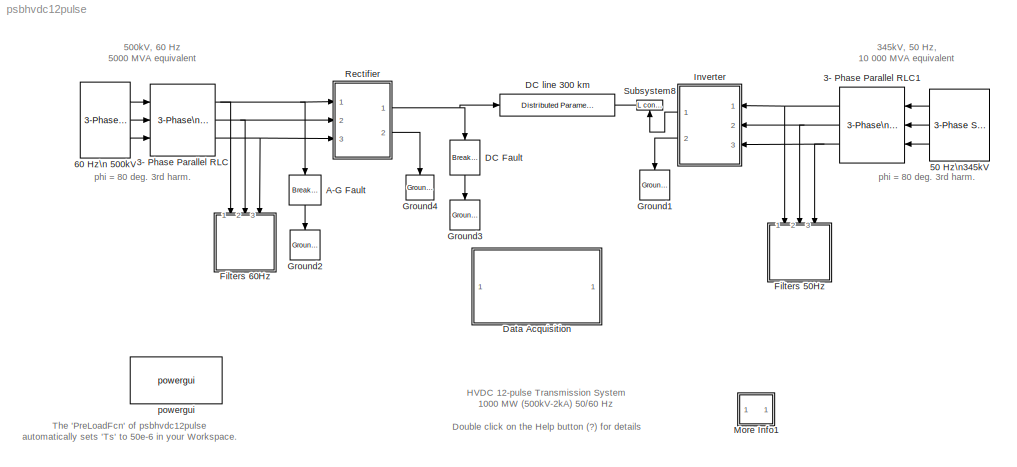
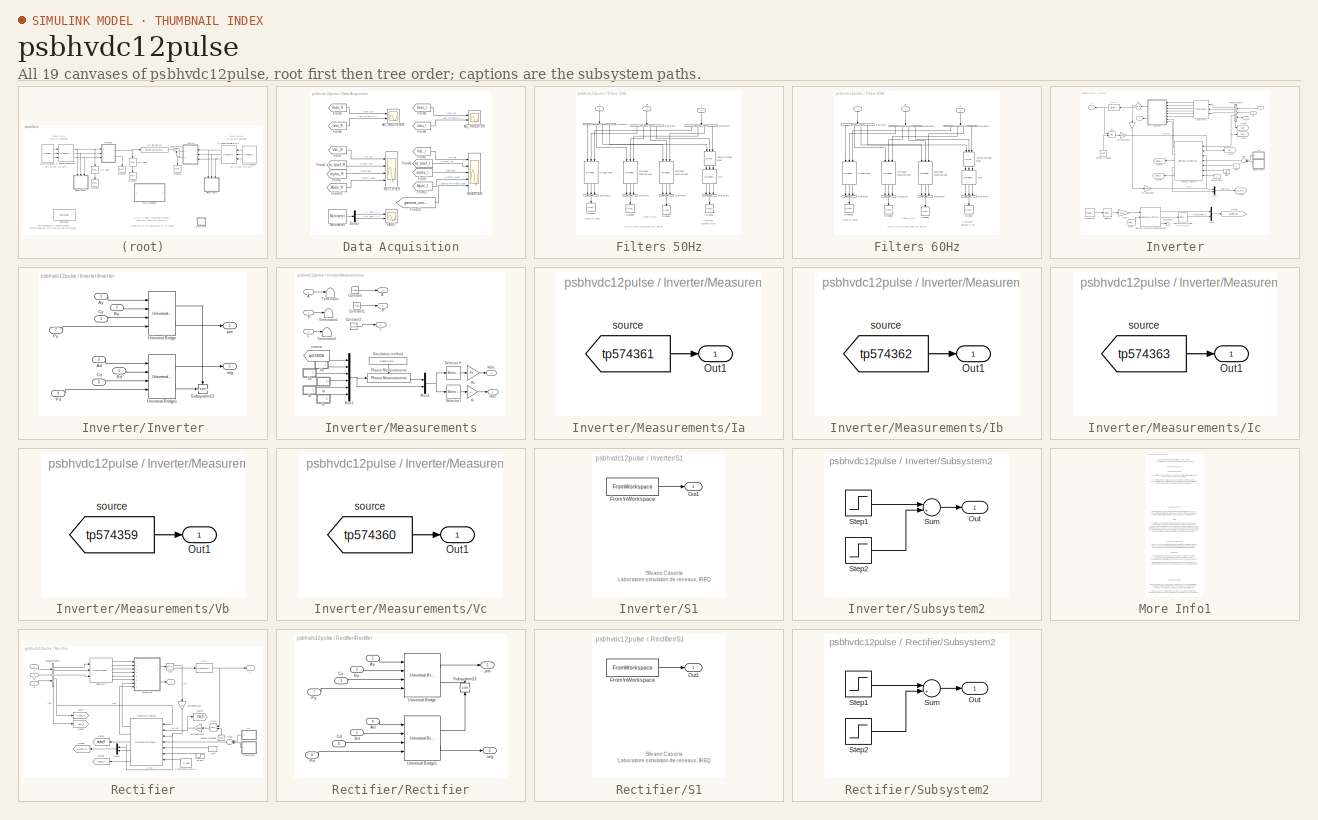
[diagram: thumbnail index - all 19 canvases of the model, root first then tree order]
MODEL psbhvdc12pulse
KIND model
CONFIG InitFcn = powericon('psbinitsys',bdroot);
CONFIG PreLoadFcn = assignin('base','Ts',[50e-6])
BLOCK [Reference]  50 Hz\n345kV    REF=powerlib2/Electrical\nSources/3-Phase Source
  F = 50
  InternalConnection = Yg
  L = 28.0e-3
  PSBOutputType = 111
  Phi = 0
  Ports = [0, 3]
  Psc = 0
  R = 0
  RLoff = off
  ShowPortLabels = on
  SourceBlock = powerlib2/Electrical\nSources/3-Phase Source
  SourceType = 3-Phase Source
  Tag = PoWeRsYsTeMbLoCk
  V = 345e3
  Vbase = 0
  XRratio = 0
BLOCK [Reference]  60 Hz\n 500kV  REF=powerlib2/Electrical\nSources/3-Phase Source
  F = 60
  InternalConnection = Yg
  L = 98.03e-3
  PSBOutputType = 111
  Phi = 0
  Ports = [0, 3]
  Psc = 0
  R = 0
  RLoff = off
  ShowPortLabels = on
  SourceBlock = powerlib2/Electrical\nSources/3-Phase Source
  SourceType = 3-Phase Source
  Tag = PoWeRsYsTeMbLoCk
  V = 500e3
  Vbase = 0
  XRratio = 0
BLOCK [Reference] 3- Phase Parallel RLC  REF=powerlib2/Elements/3-Phase\nParallel RLC Branch
  C = 0
  L = 48.86e-3
  Ports = [3, 3]
  R = 26.07
  ShowPortLabels = on
  SourceBlock = powerlib2/Elements/3-Phase\nParallel RLC Branch
  SourceType = 3-phase parallel RLC element
BLOCK [Reference] 3- Phase Parallel RLC1  REF=powerlib2/Elements/3-Phase\nParallel RLC Branch
  C = 0
  L = 13.96e-3
  Ports = [3, 3]
  R = 6.205
  ShowPortLabels = on
  SourceBlock = powerlib2/Elements/3-Phase\nParallel RLC Branch
  SourceType = 3-phase parallel RLC element
BLOCK [Reference] A-G Fault  REF=powerlib2/Elements/Breaker
  PSBOutputType = 1
  Ports = [1, 1]
  ShowPortLabels = on
  SourceBlock = powerlib2/Elements/Breaker
  SourceType = Breaker
  Tag = PoWeRsYsTeMbLoCk
  Ts = 0
  a = 0.01
  c = 0
  comext = off
  cs = inf
  mesure = Branch current
  rs = inf
  times = [ 0.6 0.7]*100
BLOCK [Reference] DC Fault  REF=powerlib2/Elements/Breaker
  PSBOutputType = 1
  Ports = [1, 1]
  ShowPortLabels = on
  SourceBlock = powerlib2/Elements/Breaker
  SourceType = Breaker
  Tag = PoWeRsYsTeMbLoCk
  Ts = 0
  a = 1
  c = 0
  comext = off
  cs = inf
  mesure = Branch current
  rs = inf
  times = [0.6 0.65]*100
BLOCK [Reference] DC line 300 km  REF=powerlib2/Elements/Distributed Parameters Line
  PSBOutputType = 111111111111111111111111111111
  Ports = [1, 1]
  ShowPortLabels = on
  SourceBlock = powerlib2/Elements/Distributed Parameters Line
  SourceType = Distributed Parameters Line
  Tag = PoWeRsYsTeMbLoCk
  c = 14.4e-9
  f = 60
  l = 0.792e-3
  lgt = 300
  mesure = None
  n = 1
  r = 0.015
  x1 = [0 0 0 0; 0.0001244 0 0 0; 0.0002488 0 0 0; 0.0003733 0 0 0; 0.0004977 0 0 0; 0.0006221 0 0 0]
  x2 = [0 0 0 0; 0.0001244 0 0 0; 0.0002488 0 0 0; 0.0003733 0 0 0; 0.0004977 0 0 0; 0.0006221 0 0 0]
  x3 = [0 0 0 0; 0.0001244 0 0 0; 0.0002488 0 0 0; 0.0003733 0 0 0; 0.0004977 0 0 0; 0.0006221 0 0 0]
  x4 = [0 0 0 0; 0.0001244 0 0 0; 0.0002488 0 0 0; 0.0003733 0 0 0; 0.0004977 0 0 0; 0.0006221 0 0 0]
  x5 = 0
BLOCK [SubSystem] Data Acquisition
  MaskDisplay = disp('Open this block\\nto visualize\\nrecorded signals')
  MaskIconFrame = on
  MaskIconOpaque = on
  MaskIconRotate = none
  MaskIconUnits = autoscale
  MinAlgLoopOccurrences = off
  Ports = []
  RTWSystemCode = Auto
  TreatAsAtomicUnit = off
BLOCK [Scope] Data Acquisition/AC_INVERTER
  DataFormat = Array
  Decimation = Ts
  LimitDataPoints = off
  NumInputPorts = 2
  Ports = [2]
  SampleInput = on
  SampleTime = Ts
  SaveName = ScopeData4
  TimeRange = 0.2008622476996453
  YMax = 1.25~5
  YMin = -1.25~-4
  ZoomMode = xonly
BLOCK [Scope] Data Acquisition/AC_RECTIFIER
  DataFormat = Array
  Decimation = Ts
  LimitDataPoints = off
  NumInputPorts = 2
  Ports = [2]
  SampleInput = on
  SampleTime = Ts
  SaveName = ScopeData1
  TimeRange = 0.2008622476996453
  YMax = 1.25~5
  YMin = -1.25~-4
  ZoomMode = xonly
BLOCK [Demux] Data Acquisition/Demux
  Outputs = 2
  Ports = [1, 2]
BLOCK [Scope] Data Acquisition/FAULT
  DataFormat = Array
  Decimation = Ts
  LimitDataPoints = off
  NumInputPorts = 2
  Ports = [2]
  SampleInput = on
  SampleTime = Ts
  TimeRange = 0.2008622476996453
  YMax = 1.25~5
  YMin = -1.25~-4
  ZoomMode = xonly
BLOCK [From] Data Acquisition/From
  CloseFcn = tagdialog Close
  DialogController = Simulink.DDGSource
  GotoTag = VdL_R
BLOCK [From] Data Acquisition/From1
  CloseFcn = tagdialog Close
  DialogController = Simulink.DDGSource
  GotoTag = Id_Idref_R
BLOCK [From] Data Acquisition/From10
  CloseFcn = tagdialog Close
  DialogController = Simulink.DDGSource
  GotoTag = Mode_R
BLOCK [From] Data Acquisition/From11
  CloseFcn = tagdialog Close
  DialogController = Simulink.DDGSource
  GotoTag = Mode_I
BLOCK [From] Data Acquisition/From12
  CloseFcn = tagdialog Close
  DialogController = Simulink.DDGSource
  GotoTag = gamma_min_mean_f_I
BLOCK [From] Data Acquisition/From2
  CloseFcn = tagdialog Close
  DialogController = Simulink.DDGSource
  GotoTag = alpha_R
BLOCK [From] Data Acquisition/From3
  CloseFcn = tagdialog Close
  DialogController = Simulink.DDGSource
  GotoTag = Vabc_R
BLOCK [From] Data Acquisition/From4
  CloseFcn = tagdialog Close
  DialogController = Simulink.DDGSource
  GotoTag = Iabc_R
BLOCK [From] Data Acquisition/From5
  CloseFcn = tagdialog Close
  DialogController = Simulink.DDGSource
  GotoTag = VdL_I
BLOCK [From] Data Acquisition/From6
  CloseFcn = tagdialog Close
  DialogController = Simulink.DDGSource
  GotoTag = Id_Idref_I
BLOCK [From] Data Acquisition/From7
  CloseFcn = tagdialog Close
  DialogController = Simulink.DDGSource
  GotoTag = alpha_I
BLOCK [From] Data Acquisition/From8
  CloseFcn = tagdialog Close
  DialogController = Simulink.DDGSource
  GotoTag = Vabc_I
BLOCK [From] Data Acquisition/From9
  CloseFcn = tagdialog Close
  DialogController = Simulink.DDGSource
  GotoTag = Iabc_I
BLOCK [Scope] Data Acquisition/INVERTER
  DataFormat = StructureWithTime
  Decimation = Ts
  LimitDataPoints = off
  NumInputPorts = 5
  Ports = [5]
  SampleInput = on
  SampleTime = Ts
  SaveName = inv
  SaveToWorkspace = on
  TimeRange = 1
  YMax = 1.25~1.25~175~2~200
  YMin = -0.25~-0.25~75~0~0
  ZoomMode = yonly
BLOCK [Reference] Data Acquisition/Multimeter  REF=powerlib2/Measurements/Multimeter
  AxesSetting = [0,0.1,-100,100]
  Display = 0
  Gain = [1 1]
  L = 18
  OutputType = Magnitude
  PSBOutputType = 1
  PSBequivalent = 0
  PhasorSimulation = off
  Ports = [0, 1]
  SavedBlockNames = {}
  ShowPortLabels = on
  SourceBlock = powerlib2/Measurements/Multimeter
  SourceType = MultimeterPSB
  Tag = PoWeRsYsTeMmEaSuReMeNt
  sel = [11 12]
  yselected = {'Ib: A-G Fault','Ib: DC Fault'};
BLOCK [Scope] Data Acquisition/RECTIFIER
  DataFormat = StructureWithTime
  Decimation = Ts
  LimitDataPoints = off
  NumInputPorts = 4
  Ports = [4]
  SampleInput = on
  SampleTime = Ts
  SaveName = rect
  SaveToWorkspace = on
  TimeRange = 1
  YMax = 1.5~1.5~100~5
  YMin = -0.5~-0.5~0~0
BLOCK [SubSystem] Filters 50Hz
  MaskDisplay = disp('AC filters\\n50 Hz\\n600 Mvar')
  MaskIconFrame = on
  MaskIconOpaque = off
  MaskIconRotate = none
  MaskIconUnits = autoscale
  MinAlgLoopOccurrences = off
  Ports = [3]
  RTWSystemCode = Auto
  TreatAsAtomicUnit = off
BLOCK [Reference] Filters 50Hz/11th\n150 Mvar\nQ=100   REF=powerlib2/Elements/3-Phase\nSeries RLC Branch 
  C = 4.012e-6
  L = 20.87e-3
  Ports = [3, 3]
  R = 0.7214
  ShowPortLabels = on
  SourceBlock = powerlib2/Elements/3-Phase\nSeries RLC Branch
  SourceType = 3-phase RLC series element
BLOCK [Reference] Filters 50Hz/13th\n150 Mvar\nQ=100  REF=powerlib2/Elements/3-Phase\nSeries RLC Branch 
  C = 4.012e-6
  L = 14.95e-3
  Ports = [3, 3]
  R = 0.6104
  ShowPortLabels = on
  SourceBlock = powerlib2/Elements/3-Phase\nSeries RLC Branch
  SourceType = 3-phase RLC series element
BLOCK [Inport] Filters 50Hz/A
  IconDisplay = Port number
  LatchInput = off
  MaskIconFrame = on
  MaskIconOpaque = on
  MaskIconRotate = none
  MaskIconUnits = autoscale
  Port = 1
BLOCK [Inport] Filters 50Hz/B
  IconDisplay = Port number
  LatchInput = off
  MaskIconFrame = on
  MaskIconOpaque = on
  MaskIconRotate = none
  MaskIconUnits = autoscale
  Port = 2
BLOCK [Reference] Filters 50Hz/Bus Bar1  REF=powerlib2/Connectors/Bus Bar (horiz)
  PSBOutputType = 1111111111111111111111111111111111111111111111111111111111111111111111111
  Ports = [3, 1]
  ShowPortLabels = on
  SourceBlock = powerlib2/Connectors/Bus Bar (horiz)
  SourceType = Bus Bar
  Tag = PoWeRsYsTeMbLoCk
  entrees = 3
  sorties = 1
BLOCK [Reference] Filters 50Hz/Bus Bar2  REF=powerlib2/Connectors/Bus Bar (horiz)
  PSBOutputType = 1111111111111111111111111111111111111111111111111111111111111111111111111
  Ports = [3, 1]
  ShowPortLabels = on
  SourceBlock = powerlib2/Connectors/Bus Bar (horiz)
  SourceType = Bus Bar
  Tag = PoWeRsYsTeMbLoCk
  entrees = 3
  sorties = 1
BLOCK [Reference] Filters 50Hz/Bus Bar3  REF=powerlib2/Connectors/Bus Bar (horiz)
  PSBOutputType = 1111111111111111111111111111111111111111111111111111111111111111111111111
  Ports = [3, 1]
  ShowPortLabels = on
  SourceBlock = powerlib2/Connectors/Bus Bar (horiz)
  SourceType = Bus Bar
  Tag = PoWeRsYsTeMbLoCk
  entrees = 3
  sorties = 1
BLOCK [Reference] Filters 50Hz/Bus Bar4  REF=powerlib2/Connectors/Bus Bar (horiz)
  PSBOutputType = 1111111111111111111111111111111111111111111111111111111111111111111111111
  Ports = [3, 1]
  ShowPortLabels = on
  SourceBlock = powerlib2/Connectors/Bus Bar (horiz)
  SourceType = Bus Bar
  Tag = PoWeRsYsTeMbLoCk
  entrees = 3
  sorties = 1
BLOCK [Reference] Filters 50Hz/Bus Bar7  REF=powerlib2/Connectors/Bus Bar (horiz)
  PSBOutputType = 1111111111111111111111111111111111111111111111111111111111111111111111111
  Ports = [1, 4]
  ShowPortLabels = on
  SourceBlock = powerlib2/Connectors/Bus Bar (horiz)
  SourceType = Bus Bar
  Tag = PoWeRsYsTeMbLoCk
  entrees = 1
  sorties = 4
BLOCK [Reference] Filters 50Hz/Bus Bar8  REF=powerlib2/Connectors/Bus Bar (horiz)
  PSBOutputType = 1111111111111111111111111111111111111111111111111111111111111111111111111
  Ports = [1, 4]
  ShowPortLabels = on
  SourceBlock = powerlib2/Connectors/Bus Bar (horiz)
  SourceType = Bus Bar
  Tag = PoWeRsYsTeMbLoCk
  entrees = 1
  sorties = 4
BLOCK [Reference] Filters 50Hz/Bus Bar9  REF=powerlib2/Connectors/Bus Bar (horiz)
  PSBOutputType = 1111111111111111111111111111111111111111111111111111111111111111111111111
  Ports = [1, 4]
  ShowPortLabels = on
  SourceBlock = powerlib2/Connectors/Bus Bar (horiz)
  SourceType = Bus Bar
  Tag = PoWeRsYsTeMbLoCk
  entrees = 1
  sorties = 4
BLOCK [Inport] Filters 50Hz/C
  IconDisplay = Port number
  LatchInput = off
  MaskIconFrame = on
  MaskIconOpaque = on
  MaskIconRotate = none
  MaskIconUnits = autoscale
  Port = 3
BLOCK [Reference] Filters 50Hz/C\n150 Mvar  REF=powerlib2/Elements/3-Phase\nSeries RLC Branch 
  C = 4.012e-6
  L = 0
  Ports = [3, 3]
  R = 0
  ShowPortLabels = on
  SourceBlock = powerlib2/Elements/3-Phase\nSeries RLC Branch
  SourceType = 3-phase RLC series element
BLOCK [Reference] Filters 50Hz/Ground  REF=powerlib2/Connectors/Ground (input)
  Ports = [1]
  ShowPortLabels = on
  SourceBlock = powerlib2/Connectors/Ground (input)
  SourceType = Ground
  Tag = PoWeRsYsTeMbLoCk
BLOCK [Reference] Filters 50Hz/Ground1  REF=powerlib2/Connectors/Ground (input)
  Ports = [1]
  ShowPortLabels = on
  SourceBlock = powerlib2/Connectors/Ground (input)
  SourceType = Ground
  Tag = PoWeRsYsTeMbLoCk
BLOCK [Reference] Filters 50Hz/Ground2  REF=powerlib2/Connectors/Ground (input)
  Ports = [1]
  ShowPortLabels = on
  SourceBlock = powerlib2/Connectors/Ground (input)
  SourceType = Ground
  Tag = PoWeRsYsTeMbLoCk
BLOCK [Reference] Filters 50Hz/Ground3  REF=powerlib2/Connectors/Ground (input)
  Ports = [1]
  ShowPortLabels = on
  SourceBlock = powerlib2/Connectors/Ground (input)
  SourceType = Ground
  Tag = PoWeRsYsTeMbLoCk
BLOCK [Reference] Filters 50Hz/Q=3  REF=powerlib2/Elements/3-Phase\nParallel RLC Branch
  C = 0
  L = 4.385e-3
  Ports = [3, 3]
  R = 99.19
  ShowPortLabels = on
  SourceBlock = powerlib2/Elements/3-Phase\nParallel RLC Branch
  SourceType = 3-phase parallel RLC element
BLOCK [Reference] Filters 50Hz/\n23-25 th\n150 Mvar  REF=powerlib2/Elements/3-Phase\nSeries RLC Branch 
  C = 4.012e-6
  L = 0
  Ports = [3, 3]
  R = 0
  ShowPortLabels = on
  SourceBlock = powerlib2/Elements/3-Phase\nSeries RLC Branch
  SourceType = 3-phase RLC series element
BLOCK [SubSystem] Filters 60Hz
  MaskDisplay = disp('AC filters \\n60 Hz\\n600 Mvar')
  MaskIconFrame = on
  MaskIconOpaque = off
  MaskIconRotate = none
  MaskIconUnits = autoscale
  MinAlgLoopOccurrences = off
  Ports = [3]
  RTWSystemCode = Auto
  TreatAsAtomicUnit = off
BLOCK [Reference] Filters 60Hz/11th\n150 Mvar\nQ=100   REF=powerlib2/Elements/3-Phase\nSeries RLC Branch 
  C = 1.592e-6
  L = 36.53e-3
  Ports = [3, 3]
  R = 1.515
  ShowPortLabels = on
  SourceBlock = powerlib2/Elements/3-Phase\nSeries RLC Branch
  SourceType = 3-phase RLC series element
BLOCK [Reference] Filters 60Hz/13th\n150 Mvar\nQ=100  REF=powerlib2/Elements/3-Phase\nSeries RLC Branch 
  C = 1.592e-6
  L = 26.15e-3
  Ports = [3, 3]
  R = 1.282
  ShowPortLabels = on
  SourceBlock = powerlib2/Elements/3-Phase\nSeries RLC Branch
  SourceType = 3-phase RLC series element
BLOCK [Inport] Filters 60Hz/A
  IconDisplay = Port number
  LatchInput = off
  MaskIconFrame = on
  MaskIconOpaque = on
  MaskIconRotate = none
  MaskIconUnits = autoscale
  Port = 1
BLOCK [Inport] Filters 60Hz/B
  IconDisplay = Port number
  LatchInput = off
  MaskIconFrame = on
  MaskIconOpaque = on
  MaskIconRotate = none
  MaskIconUnits = autoscale
  Port = 2
BLOCK [Reference] Filters 60Hz/Bus Bar1  REF=powerlib2/Connectors/Bus Bar (horiz)
  PSBOutputType = 1111111111111111111111111111111111111111111111111111111111111111111111111
  Ports = [3, 1]
  ShowPortLabels = on
  SourceBlock = powerlib2/Connectors/Bus Bar (horiz)
  SourceType = Bus Bar
  Tag = PoWeRsYsTeMbLoCk
  entrees = 3
  sorties = 1
BLOCK [Reference] Filters 60Hz/Bus Bar2  REF=powerlib2/Connectors/Bus Bar (horiz)
  PSBOutputType = 1111111111111111111111111111111111111111111111111111111111111111111111111
  Ports = [3, 1]
  ShowPortLabels = on
  SourceBlock = powerlib2/Connectors/Bus Bar (horiz)
  SourceType = Bus Bar
  Tag = PoWeRsYsTeMbLoCk
  entrees = 3
  sorties = 1
BLOCK [Reference] Filters 60Hz/Bus Bar3  REF=powerlib2/Connectors/Bus Bar (horiz)
  PSBOutputType = 1111111111111111111111111111111111111111111111111111111111111111111111111
  Ports = [3, 1]
  ShowPortLabels = on
  SourceBlock = powerlib2/Connectors/Bus Bar (horiz)
  SourceType = Bus Bar
  Tag = PoWeRsYsTeMbLoCk
  entrees = 3
  sorties = 1
BLOCK [Reference] Filters 60Hz/Bus Bar4  REF=powerlib2/Connectors/Bus Bar (horiz)
  PSBOutputType = 1111111111111111111111111111111111111111111111111111111111111111111111111
  Ports = [3, 1]
  ShowPortLabels = on
  SourceBlock = powerlib2/Connectors/Bus Bar (horiz)
  SourceType = Bus Bar
  Tag = PoWeRsYsTeMbLoCk
  entrees = 3
  sorties = 1
BLOCK [Reference] Filters 60Hz/Bus Bar7  REF=powerlib2/Connectors/Bus Bar (horiz)
  PSBOutputType = 1111111111111111111111111111111111111111111111111111111111111111111111111
  Ports = [1, 4]
  ShowPortLabels = on
  SourceBlock = powerlib2/Connectors/Bus Bar (horiz)
  SourceType = Bus Bar
  Tag = PoWeRsYsTeMbLoCk
  entrees = 1
  sorties = 4
BLOCK [Reference] Filters 60Hz/Bus Bar8  REF=powerlib2/Connectors/Bus Bar (horiz)
  PSBOutputType = 1111111111111111111111111111111111111111111111111111111111111111111111111
  Ports = [1, 4]
  ShowPortLabels = on
  SourceBlock = powerlib2/Connectors/Bus Bar (horiz)
  SourceType = Bus Bar
  Tag = PoWeRsYsTeMbLoCk
  entrees = 1
  sorties = 4
BLOCK [Reference] Filters 60Hz/Bus Bar9  REF=powerlib2/Connectors/Bus Bar (horiz)
  PSBOutputType = 1111111111111111111111111111111111111111111111111111111111111111111111111
  Ports = [1, 4]
  ShowPortLabels = on
  SourceBlock = powerlib2/Connectors/Bus Bar (horiz)
  SourceType = Bus Bar
  Tag = PoWeRsYsTeMbLoCk
  entrees = 1
  sorties = 4
BLOCK [Inport] Filters 60Hz/C
  IconDisplay = Port number
  LatchInput = off
  MaskIconFrame = on
  MaskIconOpaque = on
  MaskIconRotate = none
  MaskIconUnits = autoscale
  Port = 3
BLOCK [Reference] Filters 60Hz/C\n150 Mvar  REF=powerlib2/Elements/3-Phase\nSeries RLC Branch 
  C = 1.592e-6
  L = 0
  Ports = [3, 3]
  R = 0
  ShowPortLabels = on
  SourceBlock = powerlib2/Elements/3-Phase\nSeries RLC Branch
  SourceType = 3-phase RLC series element
BLOCK [Reference] Filters 60Hz/Ground  REF=powerlib2/Connectors/Ground (input)
  Ports = [1]
  ShowPortLabels = on
  SourceBlock = powerlib2/Connectors/Ground (input)
  SourceType = Ground
  Tag = PoWeRsYsTeMbLoCk
BLOCK [Reference] Filters 60Hz/Ground1  REF=powerlib2/Connectors/Ground (input)
  Ports = [1]
  ShowPortLabels = on
  SourceBlock = powerlib2/Connectors/Ground (input)
  SourceType = Ground
  Tag = PoWeRsYsTeMbLoCk
BLOCK [Reference] Filters 60Hz/Ground2  REF=powerlib2/Connectors/Ground (input)
  Ports = [1]
  ShowPortLabels = on
  SourceBlock = powerlib2/Connectors/Ground (input)
  SourceType = Ground
  Tag = PoWeRsYsTeMbLoCk
BLOCK [Reference] Filters 60Hz/Ground3  REF=powerlib2/Connectors/Ground (input)
  Ports = [1]
  ShowPortLabels = on
  SourceBlock = powerlib2/Connectors/Ground (input)
  SourceType = Ground
  Tag = PoWeRsYsTeMbLoCk
BLOCK [Reference] Filters 60Hz/Q=3  REF=powerlib2/Elements/3-Phase\nParallel RLC Branch
  C = 0
  L = 7.673e-3
  Ports = [3, 3]
  R = 208.3
  ShowPortLabels = on
  SourceBlock = powerlib2/Elements/3-Phase\nParallel RLC Branch
  SourceType = 3-phase parallel RLC element
BLOCK [Reference] Filters 60Hz/\n23-25 th\n150 Mvar  REF=powerlib2/Elements/3-Phase\nSeries RLC Branch 
  C = 1.592e-6
  L = 0
  Ports = [3, 3]
  R = 0
  ShowPortLabels = on
  SourceBlock = powerlib2/Elements/3-Phase\nSeries RLC Branch
  SourceType = 3-phase RLC series element
BLOCK [Reference] Ground1  REF=powerlib2/Connectors/Ground (input)
  Ports = [1]
  ShowPortLabels = on
  SourceBlock = powerlib2/Connectors/Ground (input)
  SourceType = Ground
  Tag = PoWeRsYsTeMbLoCk
BLOCK [Reference] Ground2  REF=powerlib2/Connectors/Ground (input)
  Ports = [1]
  ShowPortLabels = on
  SourceBlock = powerlib2/Connectors/Ground (input)
  SourceType = Ground
  Tag = PoWeRsYsTeMbLoCk
BLOCK [Reference] Ground3  REF=powerlib2/Connectors/Ground (input)
  Ports = [1]
  ShowPortLabels = on
  SourceBlock = powerlib2/Connectors/Ground (input)
  SourceType = Ground
  Tag = PoWeRsYsTeMbLoCk
BLOCK [Reference] Ground4  REF=powerlib2/Connectors/Ground (input)
  Ports = [1]
  ShowPortLabels = on
  SourceBlock = powerlib2/Connectors/Ground (input)
  SourceType = Ground
  Tag = PoWeRsYsTeMbLoCk
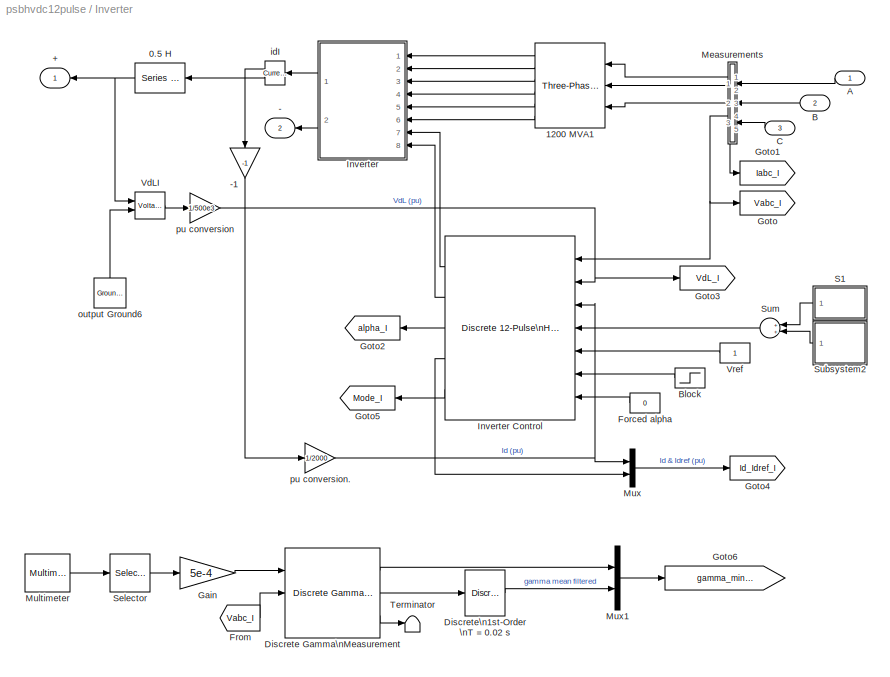
BLOCK [SubSystem] Inverter
  MinAlgLoopOccurrences = off
  Ports = [3, 2]
  RTWSystemCode = Auto
  TreatAsAtomicUnit = off
BLOCK [Outport] Inverter/+
  BusOutputAsStruct = off
  IconDisplay = Port number
BLOCK [Outport] Inverter/-
  BusOutputAsStruct = off
  IconDisplay = Port number
  Port = 2
BLOCK [Gain] Inverter/-1
  Gain = -1
BLOCK [Reference] Inverter/0.5 H  REF=powerlib2/Elements/Series RLC Branch
  PSBOutputType = 1
  Ports = [1, 1]
  ShowPortLabels = on
  SourceBlock = powerlib2/Elements/Series RLC Branch
  SourceType = Series RLC Branch
  Tag = PoWeRsYsTeMbLoCk
  a = 1
  b = 0.5
  c = inf
  mesure = None
BLOCK [Reference] Inverter/1200 MVA1  REF=powerlib2/Elements/Three-Phase\nTransformer\n(Three Windings)
  PSBOutputType = 111111
  Ports = [3, 6]
  ShowPortLabels = on
  SourceBlock = powerlib2/Elements/Three-Phase\nTransformer\n(Three Windings)
  SourceType = Three-Phase Transformer (Three Windings)
  Tag = PoWeRsYsTeMbLoCk
  confi = ABC as input terminals
  hyst = off
  ifl = [0.8 -0.8 0.7]
  initialslopes = [+1 +1 +1]
  lm = 500
  matfile = 'hysteresis'
  mesure = None
  nom = [ 1200e6 , 50 ]
  rmag = 500
  sat = [0 0; 1 1.2; 2 1.1]
  sif = off
  w1 = [ 345e3*0.96 0.0025  0 ]
  w2 = [ 200e3  0.0025 0.24]
  w3 = [ 200e3 0.0025 0.24 ]
  ydw1 = Yg
  ydw2 = Y
  ydw3 = Delta (D1)
  ynsat = off
BLOCK [Inport] Inverter/A
  IconDisplay = Port number
  LatchInput = off
  Port = 1
BLOCK [Inport] Inverter/B
  IconDisplay = Port number
  LatchInput = off
  Port = 2
BLOCK [Step] Inverter/Block
  After = 0
  Before = 1
  SampleTime = 0
  Time = 0.02
BLOCK [Inport] Inverter/C
  IconDisplay = Port number
  LatchInput = off
  Port = 3
BLOCK [Reference] Inverter/Discrete Gamma\nMeasurement  REF=powerlib_extras/Discrete \nControl Blocks/Discrete Gamma\nMeasurement
  Ith_min = 0.001
  Ports = [3, 3]
  ShowPortLabels = on
  SourceBlock = powerlib_extras/Discrete \nControl Blocks/Discrete Gamma\nMeasurement
  SourceType = Discrete Gamma Measurement (6-pulse converter)
  Ts = 50e-6
  f0 = 50
  transfo_type = Yg / Y
BLOCK [Reference] Inverter/Discrete\n1st-Order\nT = 0.02 s  REF=powerlib_extras/Discrete \nControl Blocks/Discrete\n1st-Order\nDiscrete Filter
  FilterType = Lowpass
  Initialize = off
  PlotResponse = off
  Ports = [1, 1]
  ShowPortLabels = on
  SourceBlock = powerlib_extras/Discrete \nControl Blocks/Discrete\n1st-Order\nDiscrete Filter
  SourceType = Discrete 1st-Order Filter
  Tc = 1/50
  Ts = Ts
  Vac_Init = [0.8 -25 60]
  Vdc_Init = -0.4
  param1 = [1 500 0.1]
BLOCK [Constant] Inverter/Forced alpha
  Value = 0
BLOCK [From] Inverter/From
  CloseFcn = tagdialog Close
  DialogController = Simulink.DDGSource
  GotoTag = Vabc_I
BLOCK [Gain] Inverter/Gain
  Gain = 5e-4
BLOCK [Goto] Inverter/Goto
  DialogController = Simulink.DDGSource
  GotoTag = Vabc_I
  TagVisibility = global
BLOCK [Goto] Inverter/Goto1
  DialogController = Simulink.DDGSource
  GotoTag = Iabc_I
  TagVisibility = global
BLOCK [Goto] Inverter/Goto2
  DialogController = Simulink.DDGSource
  GotoTag = alpha_I
  TagVisibility = global
BLOCK [Goto] Inverter/Goto3
  DialogController = Simulink.DDGSource
  GotoTag = VdL_I
  TagVisibility = global
BLOCK [Goto] Inverter/Goto4
  DialogController = Simulink.DDGSource
  GotoTag = Id_Idref_I
  TagVisibility = global
BLOCK [Goto] Inverter/Goto5
  DialogController = Simulink.DDGSource
  GotoTag = Mode_I
  TagVisibility = global
BLOCK [Goto] Inverter/Goto6
  DialogController = Simulink.DDGSource
  GotoTag = gamma_min_mean_f_I
  TagVisibility = global
BLOCK [SubSystem] Inverter/Inverter
  MaskDisplay = plot(0,0,100,100,[30 70 50 30 ], [60 60 40 60], [50 50], [25 40], [50 50], [ 60 75], [30 70], [40 40], [50 60 70], [40 30 30]);
  MaskIconFrame = on
  MaskIconOpaque = off
  MaskIconRotate = none
  MaskIconUnits = autoscale
  MinAlgLoopOccurrences = off
  Ports = [8, 2]
  RTWSystemCode = Auto
  TreatAsAtomicUnit = off
BLOCK [Reference] Inverter/Inverter Control  REF=powerlib_extras/Discrete \nControl Blocks/Discrete 12-Pulse\nHVDC Control 
  BP = 25
  Mode = Inverter
  Ports = [7, 5]
  ShowPortLabels = on
  SourceBlock = powerlib_extras/Discrete \nControl Blocks/Discrete 12-Pulse\nHVDC Control
  SourceType = Discrete 12-pulse HVDC Control
  T1_I = 0.3e-3
  XKPI_I = [45, 4500, 90]
  XKPI_V = [35, 2250,  90]
  XLinI = [160,  120]
  XLinR = [60, 20]
  XPILimI = [165, 92]
  XPILimR = [165, 5]
  XT_V = [10e-3 , 0.1e-3]
  Xmarg = [0.1,  0.05]
  Xvdcol = [0.6, 0.18, 0.30, 0.1, 0.080]
  alpha_const = off
  alpha_fix = 165
  f0Pw = [50 101.5]
  pas = Ts
BLOCK [Inport] Inverter/Inverter/Ad
  IconDisplay = Port number
  LatchInput = off
  Port = 4
BLOCK [Inport] Inverter/Inverter/Ay
  IconDisplay = Port number
  LatchInput = off
  Port = 1
BLOCK [Inport] Inverter/Inverter/Bd
  IconDisplay = Port number
  LatchInput = off
  Port = 5
BLOCK [Inport] Inverter/Inverter/By
  IconDisplay = Port number
  LatchInput = off
  Port = 2
BLOCK [Inport] Inverter/Inverter/Cd
  IconDisplay = Port number
  LatchInput = off
  Port = 6
BLOCK [Inport] Inverter/Inverter/Cy
  IconDisplay = Port number
  LatchInput = off
  Port = 3
BLOCK [Inport] Inverter/Inverter/Pd
  IconDisplay = Port number
  LatchInput = off
  Port = 8
BLOCK [Inport] Inverter/Inverter/Py
  IconDisplay = Port number
  LatchInput = off
  Port = 7
BLOCK [Reference] Inverter/Inverter/Subsystem13  REF=powerlib2/Connectors/L connector
  Ports = [1, 0, 1]
  ShowPortLabels = on
  SourceBlock = powerlib2/Connectors/L connector
  SourceType = Bus Bar
  Tag = PoWeRsYsTeMbLoCk
BLOCK [Reference] Inverter/Inverter/Universal Bridge  REF=powerlib2/Power\nElectronics/Universal Bridge
  Lon = 0
  PSBOutputType = 111
  Ports = [4, 2]
  Ron = 1e-3
  ShowPortLabels = on
  SourceBlock = powerlib2/Power\nElectronics/Universal Bridge
  SourceType = Universal Bridge
  Tag = PoWeRsYsTeMbLoCk
  VFs = [  0.8  0.8  ]
  Vf = 0
  arms = 3
  cf = 0.1e-6
  confi = ABC as input terminals
  device = Thyristors
  gtoparameters = [ 10e-6 , 20e-6 ]
  igbtparameters = [ 1e-6 , 2e-6 ]
  injcc = 2000
  mesure = All voltages and currents
BLOCK [Reference] Inverter/Inverter/Universal Bridge1  REF=powerlib2/Power\nElectronics/Universal Bridge
  Lon = 0
  PSBOutputType = 111
  Ports = [4, 2]
  Ron = 1e-3
  ShowPortLabels = on
  SourceBlock = powerlib2/Power\nElectronics/Universal Bridge
  SourceType = Universal Bridge
  Tag = PoWeRsYsTeMbLoCk
  VFs = [  0.8  0.8  ]
  Vf = 0
  arms = 3
  cf = 0.1e-6
  confi = ABC as input terminals
  device = Thyristors
  gtoparameters = [ 10e-6 , 20e-6 ]
  igbtparameters = [ 1e-6 , 2e-6 ]
  injcc = 2000
  mesure = None
BLOCK [Outport] Inverter/Inverter/neg
  BusOutputAsStruct = off
  IconDisplay = Port number
  Port = 2
BLOCK [Outport] Inverter/Inverter/pos
  BusOutputAsStruct = off
  IconDisplay = Port number
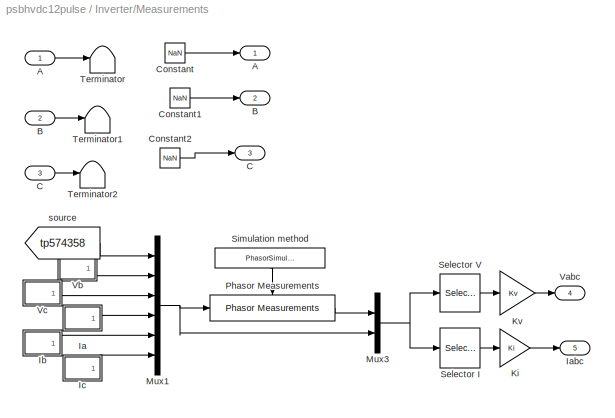
BLOCK [SubSystem] Inverter/Measurements
  AncestorBlock = powerlib2/Measurements/Three-Phase\nV-I Measurement
  CloseFcn = %3phaseVImeasurement
  CopyFcn = powericon('psbloadfunction',gcbh,'3-Phase VI Measurement','VerifyPhasor');
  InitFcn = powericon('checksum',bdroot)
  LoadFcn = powericon('psbloadfunction',gcbh,'3-Phase VI Measurement','');
  MaskCallbackString = powericon('psbcallbacks',gcb,'Three-phase measurements',2);|powericon('psbcallbacks',gcb,'Three-phase measurements',2);||powericon('psbcallbacks',gcb,'Three-phase measurements',2);||powericon('psbcallbacks',gcb,'Three-phase measurements',2);|powericon('psbcallbacks',gcb,'Three-phase measurements',2);||powericon('psbcallbacks',gcb,'Three-phase measurements',4);|||||
  MaskDescription = This block is used to measure three-phase voltages and currents in a circuit. When connected in series with a three-phase element, it return the three phase-to-ground voltages and line currents.\n\nThe block can output the voltages and currents in per unit values or in volts and amperes. Check the appropriate boxes if you want to output the voltages and currents  in pu
  MaskEnableString = on,on,on,on,on,on,on,on,on,on,off,on,off,on
  MaskHelp = web(psbhelp)
  MaskIconFrame = on
  MaskIconOpaque = on
  MaskIconRotate = none
  MaskIconUnits = autoscale
  MaskInitialization = powericon('psbcallbacks',gcb,'Three-phase measurements',4);\nif  Vpu\n    xKv=1/(Vbase/sqrt(3)*sqrt(2));\nelse\n    xKv=1;\nend\nif  Ppu\n    xKi=1/(Pbase/Vbase/sqrt(3)*sqrt(2));\nelse\n    xKi=1;\nend\nswitch OutputType\ncase 1\n    OutputSelection  = [1:6];\n    PhasorModeV = [1:3];\n    NormalModeV = [7:9];\n    PhasorModeI = [4:6];\n    NormalModeI = [10:12];\n    Kv = xKv;\n    Ki = xKi;\ncas...<+826ch>
  MaskPromptString = Voltage measurement|Use a label |Signal label  (use a From block to collect signal)|Voltage  in pu|Base voltage (Vrms phase-phase) :|Current measurement|Use a label|Signal label  (use a From block to collect signal)|Currents in pu|Base power ( VA 3 phase)|Output signal :|Phasor simulation|Equivalent circuit|PSBOutputType
  MaskSelfModifiable = on
  MaskStyleString = popup(no|phase-to-ground|phase-to-phase),checkbox,edit,checkbox,edit,popup(no|yes),checkbox,edit,checkbox,edit,popup(Complex|Real-Imag|Magnitude-Angle|Magnitude),checkbox,edit,edit
  MaskTabNameString = ,,,,,,,,,,,,,
  MaskToolTipString = on,on,on,on,on,on,on,on,on,on,on,on,on,on
  MaskTunableValueString = off,off,off,on,on,off,off,off,on,on,on,on,on,on
  MaskType = 3-Phase VI Measurement
  MaskValueString = phase-to-ground|off|V1|on|345e3|yes|off|I1|on|100e6|Magnitude|off|0|11100
  MaskVarAliasString = ,,,,,,,,,,,,,
  MaskVariables = VChoice=@1;ualv=@2;labelV=&3;Vpu=@4;Vbase=@5;IChoice=@6;ualc=@7;labelC=&8;Ppu=@9;Pbase=@10;OutputType=@11;PhasorSimulation=@12;PSBequivalent=@13;PSBOutputType=&14;
  MaskVisibilityString = on,on,off,on,on,on,on,off,on,on,on,off,off,off
  MinAlgLoopOccurrences = off
  Ports = [3, 5]
  RTWSystemCode = Auto
  Tag = PoWeRsYsTeMmEaSuReMeNt
  TreatAsAtomicUnit = off
BLOCK [Inport] Inverter/Measurements/A
  IconDisplay = Port number
  LatchInput = off
  Port = 1
BLOCK [Outport] Inverter/Measurements/A 
  BusOutputAsStruct = off
  IconDisplay = Port number
BLOCK [Inport] Inverter/Measurements/B
  IconDisplay = Port number
  LatchInput = off
  Port = 2
BLOCK [Outport] Inverter/Measurements/B 
  BusOutputAsStruct = off
  IconDisplay = Port number
  Port = 2
BLOCK [Inport] Inverter/Measurements/C
  IconDisplay = Port number
  LatchInput = off
  Port = 3
BLOCK [Outport] Inverter/Measurements/C 
  BusOutputAsStruct = off
  IconDisplay = Port number
  Port = 3
BLOCK [Constant] Inverter/Measurements/Constant
  Value = NaN
BLOCK [Constant] Inverter/Measurements/Constant1
  Value = NaN
BLOCK [Constant] Inverter/Measurements/Constant2
  Value = NaN
BLOCK [SubSystem] Inverter/Measurements/Ia
  AncestorBlock = powerlib2/Measurements/Three-Phase\nV-I Measurement/Ia
  MinAlgLoopOccurrences = off
  Ports = [0, 1]
  RTWSystemCode = Auto
  TreatAsAtomicUnit = off
BLOCK [Outport] Inverter/Measurements/Ia/Out1
  BusOutputAsStruct = off
  IconDisplay = Port number
BLOCK [From] Inverter/Measurements/Ia/source
  DialogController = Simulink.DDGSource
  GotoTag = tp574361
BLOCK [Outport] Inverter/Measurements/Iabc
  BusOutputAsStruct = off
  IconDisplay = Port number
  Port = 5
BLOCK [SubSystem] Inverter/Measurements/Ib
  AncestorBlock = powerlib2/Measurements/Three-Phase\nV-I Measurement/Ib
  MinAlgLoopOccurrences = off
  Ports = [0, 1]
  RTWSystemCode = Auto
  TreatAsAtomicUnit = off
BLOCK [Outport] Inverter/Measurements/Ib/Out1
  BusOutputAsStruct = off
  IconDisplay = Port number
BLOCK [From] Inverter/Measurements/Ib/source
  DialogController = Simulink.DDGSource
  GotoTag = tp574362
BLOCK [SubSystem] Inverter/Measurements/Ic
  AncestorBlock = powerlib2/Measurements/Three-Phase\nV-I Measurement/Ic
  MinAlgLoopOccurrences = off
  Ports = [0, 1]
  RTWSystemCode = Auto
  TreatAsAtomicUnit = off
BLOCK [Outport] Inverter/Measurements/Ic/Out1
  BusOutputAsStruct = off
  IconDisplay = Port number
BLOCK [From] Inverter/Measurements/Ic/source
  DialogController = Simulink.DDGSource
  GotoTag = tp574363
BLOCK [Gain] Inverter/Measurements/Ki
  Gain = Ki
BLOCK [Gain] Inverter/Measurements/Kv
  Gain = Kv
BLOCK [Mux] Inverter/Measurements/Mux1
  DisplayOption = bar
  Inputs = 6
  Ports = [6, 1]
BLOCK [Mux] Inverter/Measurements/Mux3
  DisplayOption = bar
  Inputs = 2
  Ports = [2, 1]
BLOCK [Reference] Inverter/Measurements/Phasor Measurements  REF=powerlib2/Measurements/Three-Phase\nV-I Measurement/Phasor Measurements
  DataTypeOverride = UseLocalSettings
  MinMaxOverflowLogging = UseLocalSettings
  Permissions = ReadWrite
  Ports = [1, 1, 1]
  RTWFcnNameOpts = Auto
  RTWFileNameOpts = Auto
  RTWSystemCode = Auto
  ShowPortLabels = on
  SimViewingDevice = off
  SourceBlock = powerlib2/Measurements/Three-Phase\nV-I Measurement/Phasor Measurements
  SourceType = SubSystem
  TreatAsAtomicUnit = on
BLOCK [Selector] Inverter/Measurements/Selector I
  Elements = SelectionModeI
  InputPortWidth = length(OutputSelection)+6
  Ports = [1, 1]
BLOCK [Selector] Inverter/Measurements/Selector V
  Elements = SelectionModeV
  InputPortWidth = length(OutputSelection)+6
  Ports = [1, 1]
BLOCK [Constant] Inverter/Measurements/Simulation method
  Value = PhasorSimulation
BLOCK [Terminator] Inverter/Measurements/Terminator
BLOCK [Terminator] Inverter/Measurements/Terminator1
BLOCK [Terminator] Inverter/Measurements/Terminator2
BLOCK [Outport] Inverter/Measurements/Vabc
  BusOutputAsStruct = off
  IconDisplay = Port number
  Port = 4
BLOCK [SubSystem] Inverter/Measurements/Vb
  AncestorBlock = powerlib2/Measurements/Three-Phase\nV-I Measurement/Vb
  MinAlgLoopOccurrences = off
  Ports = [0, 1]
  RTWSystemCode = Auto
  TreatAsAtomicUnit = off
BLOCK [Outport] Inverter/Measurements/Vb/Out1
  BusOutputAsStruct = off
  IconDisplay = Port number
BLOCK [From] Inverter/Measurements/Vb/source
  DialogController = Simulink.DDGSource
  GotoTag = tp574359
BLOCK [SubSystem] Inverter/Measurements/Vc
  AncestorBlock = powerlib2/Measurements/Three-Phase\nV-I Measurement/Vc
  MinAlgLoopOccurrences = off
  Ports = [0, 1]
  RTWSystemCode = Auto
  TreatAsAtomicUnit = off
BLOCK [Outport] Inverter/Measurements/Vc/Out1
  BusOutputAsStruct = off
  IconDisplay = Port number
BLOCK [From] Inverter/Measurements/Vc/source
  DialogController = Simulink.DDGSource
  GotoTag = tp574360
BLOCK [From] Inverter/Measurements/source
  DialogController = Simulink.DDGSource
  GotoTag = tp574358
BLOCK [Reference] Inverter/Multimeter  REF=powerlib2/Measurements/Multimeter
  AxesSetting = [0,0.1,-100,100]
  Display = 0
  Gain = [1 1 1 1 1 1 1]
  L = 18
  OutputType = Magnitude
  PSBOutputType = 1
  PSBequivalent = 0
  PhasorSimulation = off
  Ports = [0, 1]
  SavedBlockNames = -11
  ShowPortLabels = on
  SourceBlock = powerlib2/Measurements/Multimeter
  SourceType = MultimeterPSB
  Tag = PoWeRsYsTeMmEaSuReMeNt
  sel = [13 14 15 16 17 18 1]
  yselected = {'Isw1: Inverter/Inverter/Universal Bridge','Isw2: Inverter/Inverter/Universal Bridge','Isw3: Inverter/Inverter/Universal Bridge','Isw4: Inverter/Inverter/Universal Bridge','Isw5: Inverter/Inverter/Universal Bridge','Isw6: Inverter/Inverter/Universal Bridge','Usw1: Inverter/Inverter/Universal Bridge'};
BLOCK [Mux] Inverter/Mux
  DisplayOption = bar
  Inputs = 2
  Ports = [2, 1]
BLOCK [Mux] Inverter/Mux1
  DisplayOption = bar
  Inputs = 2
  Ports = [2, 1]
BLOCK [SubSystem] Inverter/S1
  MaskCallbackString = |||||
  MaskDisplay = disp('Ramping\\n Unit')
  MaskEnableString = on,on,on,on,on,on
  MaskIconFrame = on
  MaskIconOpaque = on
  MaskIconRotate = none
  MaskIconUnits = autoscale
  MaskInitialization = T_up_final      =  T_up + F_up/up_slope;\nT_down_final =   T_down + (F_down-F_up)/down_slope;\nT_ramp  = [0, T_up, T_up_final,  T_down,  T_down_final, 9999]';\nU_ramp = [0, 0 , F_up,  F_up,  F_down,  F_down]';
  MaskPromptString = Final Up Value (pu):|Up Slope (pu/s):|Start Up Time (s):|Final Down Value (pu):|Down Slope (pu/s):|Start Down Time (s):
  MaskStyleString = edit,edit,edit,edit,edit,edit
  MaskTabNameString = ,,,,,
  MaskToolTipString = on,on,on,on,on,on
  MaskTunableValueString = on,on,on,on,on,on
  MaskType = RAMPING UNIT
  MaskValueString = 1.0|1.0/0.4|0.02|0.|-1|100
  MaskVarAliasString = ,,,,,
  MaskVariables = F_up=@1;up_slope=@2;T_up=@3;F_down=@4;down_slope=@5;T_down=@6;
  MaskVisibilityString = on,on,on,on,on,on
  MinAlgLoopOccurrences = off
  Ports = [0, 1]
  RTWSystemCode = Auto
  TreatAsAtomicUnit = off
BLOCK [FromWorkspace] Inverter/S1/From \nWorkspace
  SampleTime = 0
  VariableName = [T_ramp,  U_ramp]
BLOCK [Outport] Inverter/S1/Out1
  BusOutputAsStruct = off
  IconDisplay = Port number
  InitialOutput = 0
BLOCK [Selector] Inverter/Selector
  Elements = [1 2 3 4 5 6]
  InputPortWidth = 7
  Ports = [1, 1]
BLOCK [SubSystem] Inverter/Subsystem2
  MaskDisplay = disp('Step Up\\n & Down')
  MaskIconFrame = on
  MaskIconOpaque = on
  MaskIconRotate = none
  MaskIconUnits = autoscale
  MinAlgLoopOccurrences = off
  Ports = [0, 1]
  RTWSystemCode = Auto
  TreatAsAtomicUnit = off
BLOCK [Outport] Inverter/Subsystem2/Out
  BusOutputAsStruct = off
  IconDisplay = Port number
BLOCK [Step] Inverter/Subsystem2/Step1
  After = 0.2
  SampleTime = 0
  Time = 0.6
BLOCK [Step] Inverter/Subsystem2/Step2
  After = 0.2
  SampleTime = 0
  Time = 0.75
BLOCK [Sum] Inverter/Subsystem2/Sum
  Inputs = -+
  Ports = [2, 1]
BLOCK [Sum] Inverter/Sum
  Ports = [2, 1]
BLOCK [Terminator] Inverter/Terminator
BLOCK [Reference] Inverter/VdLI  REF=powerlib2/Measurements/Voltage Measurement
  OutputType = Magnitude
  PSBOutputType = 0
  PSBequivalent = 0
  PhasorSimulation = off
  Ports = [2, 1]
  ShowPortLabels = on
  SourceBlock = powerlib2/Measurements/Voltage Measurement
  SourceType = Voltage Measurement
  Tag = PoWeRsYsTeMmEaSuReMeNt
BLOCK [Constant] Inverter/Vref
BLOCK [Reference] Inverter/idI  REF=powerlib2/Measurements/Current Measurement
  OutputType = Magnitude
  PSBOutputType = 01
  PSBequivalent = 0
  PhasorSimulation = off
  Ports = [1, 2]
  ShowPortLabels = on
  SourceBlock = powerlib2/Measurements/Current Measurement
  SourceType = Current Measurement
  Tag = PoWeRsYsTeMmEaSuReMeNt
BLOCK [Reference] Inverter/output Ground6  REF=powerlib2/Connectors/Ground (output)
  PSBOutputType = 1
  Ports = [0, 1]
  ShowPortLabels = on
  SourceBlock = powerlib2/Connectors/Ground (output)
  SourceType = Ground
  Tag = PoWeRsYsTeMbLoCk
BLOCK [Gain] Inverter/pu conversion
  Gain = 1/500e3
BLOCK [Gain] Inverter/pu conversion.
  Gain = 1/2000
BLOCK [SubSystem] More Info1
  MaskDisplay = disp('?')
  MaskIconFrame = on
  MaskIconOpaque = on
  MaskIconRotate = none
  MaskIconUnits = autoscale
  MinAlgLoopOccurrences = off
  Ports = []
  RTWSystemCode = Auto
  TreatAsAtomicUnit = off
BLOCK [SubSystem] Rectifier
  MinAlgLoopOccurrences = off
  Ports = [3, 2]
  RTWSystemCode = Auto
  TreatAsAtomicUnit = off
BLOCK [Outport] Rectifier/+ 
  BusOutputAsStruct = off
  IconDisplay = Port number
BLOCK [Outport] Rectifier/-
  BusOutputAsStruct = off
  IconDisplay = Port number
  Port = 2
BLOCK [Reference] Rectifier/0.5 H   REF=powerlib2/Elements/Series RLC Branch
  PSBOutputType = 1
  Ports = [1, 1]
  ShowPortLabels = on
  SourceBlock = powerlib2/Elements/Series RLC Branch
  SourceType = Series RLC Branch
  Tag = PoWeRsYsTeMbLoCk
  a = 1
  b = 0.5
  c = inf
  mesure = None
BLOCK [Reference] Rectifier/1200 MVA  REF=powerlib2/Elements/Three-Phase\nTransformer\n(Three Windings)
  PSBOutputType = 111111
  Ports = [3, 6]
  ShowPortLabels = on
  SourceBlock = powerlib2/Elements/Three-Phase\nTransformer\n(Three Windings)
  SourceType = Three-Phase Transformer (Three Windings)
  Tag = PoWeRsYsTeMbLoCk
  confi = ABC as input terminals
  hyst = off
  ifl = [0.8 -0.8 0.7]
  initialslopes = [+1 +1 +1]
  lm = 500
  matfile = 'hysteresis'
  mesure = None
  nom = [ 1200e6 , 60 ]
  rmag = 500
  sat = [0 0; 1 1.2; 2 1.1]
  sif = off
  w1 = [ 500e3*0.9 0.0025  0 ]
  w2 = [ 200e3 0.0025 0.24]
  w3 = [ 200e3 0.0025 0.24 ]
  ydw1 = Yg
  ydw2 = Y
  ydw3 = Delta (D1)
  ynsat = off
BLOCK [Inport] Rectifier/A
  IconDisplay = Port number
  LatchInput = off
  Port = 1
BLOCK [Inport] Rectifier/B
  IconDisplay = Port number
  LatchInput = off
  Port = 2
BLOCK [Step] Rectifier/Block
  After = 0
  Before = 1
  SampleTime = 0
  Time = 0.02
BLOCK [Inport] Rectifier/C
  IconDisplay = Port number
  LatchInput = off
  Port = 3
BLOCK [Reference] Rectifier/FORCED DELAY  REF=powerlib_extras/Control \nBlocks/Timer
  Ports = [0, 1]
  ShowPortLabels = on
  SourceBlock = powerlib_extras/Control \nBlocks/Timer
  SourceType = Timer
  e = [ 1 0 ]
  t = [0.65 0.7]*100
BLOCK [Goto] Rectifier/Goto
  DialogController = Simulink.DDGSource
  GotoTag = Vabc_R
  TagVisibility = global
BLOCK [Goto] Rectifier/Goto1
  DialogController = Simulink.DDGSource
  GotoTag = Iabc_R
  TagVisibility = global
BLOCK [Goto] Rectifier/Goto2
  DialogController = Simulink.DDGSource
  GotoTag = alpha_R
  TagVisibility = global
BLOCK [Goto] Rectifier/Goto3
  DialogController = Simulink.DDGSource
  GotoTag = Id_Idref_R
  TagVisibility = global
BLOCK [Goto] Rectifier/Goto4
  DialogController = Simulink.DDGSource
  GotoTag = VdL_R
  TagVisibility = global
BLOCK [Goto] Rectifier/Goto5
  DialogController = Simulink.DDGSource
  GotoTag = Mode_R
  TagVisibility = global
BLOCK [Reference] Rectifier/Measurements  REF=powerlib2/Measurements/Three-Phase\nV-I Measurement
  IChoice = yes
  OutputType = Magnitude
  PSBOutputType = 11100
  PSBequivalent = 0
  Pbase = 100e6
  PhasorSimulation = off
  Ports = [3, 5]
  Ppu = on
  ShowPortLabels = on
  SourceBlock = powerlib2/Measurements/Three-Phase\nV-I Measurement
  SourceType = 3-Phase VI Measurement
  Tag = PoWeRsYsTeMmEaSuReMeNt
  VChoice = phase-to-ground
  Vbase = 500e3
  Vpu = on
  labelC = I1
  labelV = V1
  ualc = off
  ualv = off
BLOCK [Mux] Rectifier/Mux2
  DisplayOption = bar
  Inputs = 2
  Ports = [2, 1]
BLOCK [SubSystem] Rectifier/Rectifier
  MaskDisplay = plot(0,0,100,100,[30 70 50 30 ], [40 40 60 40], [50 50], [25 40], [50 50], [ 60 75], [30 70], [60 60], [50 40 30], [60 70 70]);
  MaskIconFrame = on
  MaskIconOpaque = off
  MaskIconRotate = none
  MaskIconUnits = autoscale
  MinAlgLoopOccurrences = off
  Ports = [8, 2]
  RTWSystemCode = Auto
  TreatAsAtomicUnit = off
BLOCK [Reference] Rectifier/Rectifier Control  REF=powerlib_extras/Discrete \nControl Blocks/Discrete 12-Pulse\nHVDC Control 
  BP = 30
  Mode = Rectifier
  Ports = [7, 5]
  ShowPortLabels = on
  SourceBlock = powerlib_extras/Discrete \nControl Blocks/Discrete 12-Pulse\nHVDC Control
  SourceType = Discrete 12-pulse HVDC Control
  T1_I = 0.3e-3
  XKPI_I = [45, 4500, 90]
  XKPI_V = [35, 2250, 90]
  XLinI = [160,  120]
  XLinR = [60, 20]
  XPILimI = [165, 92]
  XPILimR = [165, 5]
  XT_V = [10e-3 , 0.1e-3]
  Xmarg = [0.1,  0.05]
  Xvdcol = [0.6, 0.18, 0.30, 0.1, 0.080]
  alpha_const = off
  alpha_fix = 165
  f0Pw = [60 101.5]
  pas = Ts
BLOCK [Inport] Rectifier/Rectifier/Ad
  IconDisplay = Port number
  LatchInput = off
  Port = 4
BLOCK [Inport] Rectifier/Rectifier/Ay
  IconDisplay = Port number
  LatchInput = off
  Port = 1
BLOCK [Inport] Rectifier/Rectifier/Bd
  IconDisplay = Port number
  LatchInput = off
  Port = 5
BLOCK [Inport] Rectifier/Rectifier/By
  IconDisplay = Port number
  LatchInput = off
  Port = 2
BLOCK [Inport] Rectifier/Rectifier/Cd
  IconDisplay = Port number
  LatchInput = off
  Port = 6
BLOCK [Inport] Rectifier/Rectifier/Cy
  IconDisplay = Port number
  LatchInput = off
  Port = 3
BLOCK [Inport] Rectifier/Rectifier/Pd
  IconDisplay = Port number
  LatchInput = off
  Port = 8
BLOCK [Inport] Rectifier/Rectifier/Py
  IconDisplay = Port number
  LatchInput = off
  Port = 7
BLOCK [Reference] Rectifier/Rectifier/Subsystem13  REF=powerlib2/Connectors/L connector
  Ports = [1, 0, 1]
  ShowPortLabels = on
  SourceBlock = powerlib2/Connectors/L connector
  SourceType = Bus Bar
  Tag = PoWeRsYsTeMbLoCk
BLOCK [Reference] Rectifier/Rectifier/Universal Bridge  REF=powerlib2/Power\nElectronics/Universal Bridge
  Lon = 0
  PSBOutputType = 111
  Ports = [4, 2]
  Ron = 1e-3
  ShowPortLabels = on
  SourceBlock = powerlib2/Power\nElectronics/Universal Bridge
  SourceType = Universal Bridge
  Tag = PoWeRsYsTeMbLoCk
  VFs = [  0.8  0.8  ]
  Vf = 0
  arms = 3
  cf = 0.1e-6
  confi = ABC as input terminals
  device = Thyristors
  gtoparameters = [ 10e-6 , 20e-6 ]
  igbtparameters = [ 1e-6 , 2e-6 ]
  injcc = 2000
  mesure = None
BLOCK [Reference] Rectifier/Rectifier/Universal Bridge1  REF=powerlib2/Power\nElectronics/Universal Bridge
  Lon = 0
  PSBOutputType = 111
  Ports = [4, 2]
  Ron = 1e-3
  ShowPortLabels = on
  SourceBlock = powerlib2/Power\nElectronics/Universal Bridge
  SourceType = Universal Bridge
  Tag = PoWeRsYsTeMbLoCk
  VFs = [  0.8  0.8  ]
  Vf = 0
  arms = 3
  cf = 0.1e-6
  confi = ABC as input terminals
  device = Thyristors
  gtoparameters = [ 10e-6 , 20e-6 ]
  igbtparameters = [ 1e-6 , 2e-6 ]
  injcc = 2000
  mesure = None
BLOCK [Outport] Rectifier/Rectifier/neg
  BusOutputAsStruct = off
  IconDisplay = Port number
  Port = 2
BLOCK [Outport] Rectifier/Rectifier/pos
  BusOutputAsStruct = off
  IconDisplay = Port number
BLOCK [SubSystem] Rectifier/S1
  MaskCallbackString = |||||
  MaskDisplay = disp('Ramping\\n Unit')
  MaskEnableString = on,on,on,on,on,on
  MaskIconFrame = on
  MaskIconOpaque = on
  MaskIconRotate = none
  MaskIconUnits = autoscale
  MaskInitialization = T_up_final      =  T_up + F_up/up_slope;\nT_down_final =   T_down + (F_down-F_up)/down_slope;\nT_ramp  = [0, T_up, T_up_final,  T_down,  T_down_final, 9999]';\nU_ramp = [0, 0 , F_up,  F_up,  F_down,  F_down]';
  MaskPromptString = Final Up Value (pu):|Up Slope (pu/s):|Start Up Time (s):|Final Down Value (pu):|Down Slope (pu/s):|Start Down Time (s):
  MaskStyleString = edit,edit,edit,edit,edit,edit
  MaskTabNameString = ,,,,,
  MaskToolTipString = on,on,on,on,on,on
  MaskTunableValueString = on,on,on,on,on,on
  MaskType = RAMPING UNIT
  MaskValueString = 1.0|1.0/0.4|0.02|0.|-1|100
  MaskVarAliasString = ,,,,,
  MaskVariables = F_up=@1;up_slope=@2;T_up=@3;F_down=@4;down_slope=@5;T_down=@6;
  MaskVisibilityString = on,on,on,on,on,on
  MinAlgLoopOccurrences = off
  Ports = [0, 1]
  RTWSystemCode = Auto
  TreatAsAtomicUnit = off
BLOCK [FromWorkspace] Rectifier/S1/From \nWorkspace
  SampleTime = 0
  VariableName = [T_ramp,  U_ramp]
BLOCK [Outport] Rectifier/S1/Out1
  BusOutputAsStruct = off
  IconDisplay = Port number
  InitialOutput = 0
BLOCK [SubSystem] Rectifier/Subsystem2
  MaskDisplay = disp('Step Up\\n & Down')
  MaskIconFrame = on
  MaskIconOpaque = on
  MaskIconRotate = none
  MaskIconUnits = autoscale
  MinAlgLoopOccurrences = off
  Ports = [0, 1]
  RTWSystemCode = Auto
  TreatAsAtomicUnit = off
BLOCK [Outport] Rectifier/Subsystem2/Out
  BusOutputAsStruct = off
  IconDisplay = Port number
BLOCK [Step] Rectifier/Subsystem2/Step1
  After = 0.2
  SampleTime = 0
  Time = 0.6
BLOCK [Step] Rectifier/Subsystem2/Step2
  After = 0.2
  SampleTime = 0
  Time = 0.75
BLOCK [Sum] Rectifier/Subsystem2/Sum
  Inputs = -+
  Ports = [2, 1]
BLOCK [Sum] Rectifier/Sum
  Ports = [2, 1]
BLOCK [Reference] Rectifier/VDC.  REF=powerlib2/Measurements/Voltage Measurement
  OutputType = Magnitude
  PSBOutputType = 0
  PSBequivalent = 0
  PhasorSimulation = off
  Ports = [2, 1]
  ShowPortLabels = on
  SourceBlock = powerlib2/Measurements/Voltage Measurement
  SourceType = Voltage Measurement
  Tag = PoWeRsYsTeMmEaSuReMeNt
BLOCK [Constant] Rectifier/Vref
  Value = 2
BLOCK [Reference] Rectifier/idR  REF=powerlib2/Measurements/Current Measurement
  OutputType = Magnitude
  PSBOutputType = 01
  PSBequivalent = 0
  PhasorSimulation = off
  Ports = [1, 2]
  ShowPortLabels = on
  SourceBlock = powerlib2/Measurements/Current Measurement
  SourceType = Current Measurement
  Tag = PoWeRsYsTeMmEaSuReMeNt
BLOCK [Reference] Rectifier/output Ground5  REF=powerlib2/Connectors/Ground (output)
  PSBOutputType = 1
  Ports = [0, 1]
  ShowPortLabels = on
  SourceBlock = powerlib2/Connectors/Ground (output)
  SourceType = Ground
  Tag = PoWeRsYsTeMbLoCk
BLOCK [Gain] Rectifier/pu conversion
  Gain = 1/2000
BLOCK [Gain] Rectifier/pu conversion.
  Gain = 1/500e3
BLOCK [Reference] Subsystem8  REF=powerlib2/Connectors/L connector
  Ports = [1, 0, 1]
  ShowPortLabels = on
  SourceBlock = powerlib2/Connectors/L connector
  SourceType = Bus Bar
  Tag = PoWeRsYsTeMbLoCk
BLOCK [Reference] powergui  REF=powerlib2/powergui
  DisplayStyle = off
  Frange = [0:2:500]
  FreqAxis = off
  MaxFrequency = 1000
  Ports = []
  RmsSteady = 1
  ShowPortLabels = on
  SourceBlock = powerlib2/powergui
  SourceType = PSB option menu block
  StartTime = 0.0
  Ts = 50e-6
  Xlog = on
  Ylog = off
  ZoomFFT = on
  cycles = 1
  display = off
  echomessages = off
  frequency = 60
  frequencyindice = 1
  frequencyindicesteady = 1
  fundamental = 60
  methode = off
  save = off
  variable = ZData
ANNOTATION (root): HVDC 12-pulse Transmission System \n1000 MW (500kV-2kA) 50/60 Hz
ANNOTATION (root): phi = 80 deg. 3rd harm.
ANNOTATION (root): 345kV, 50 Hz, \n10 000 MVA equivalent
ANNOTATION (root): 500kV, 60 Hz\n 5000 MVA equivalent
ANNOTATION (root): Double click on the Help button (?) for details
ANNOTATION (root): The 'PreLoadFcn' of psbhvdc12pulse\nautomatically sets 'Ts' to 50e-6 in your Workspace.
ANNOTATION Filters 50Hz: 50 Hz filters 4*150 Mvars @ 345 kV
ANNOTATION Filters 50Hz: Capacitor banks
ANNOTATION Filters 50Hz: High-pass\ndamped filter
ANNOTATION Filters 50Hz: Tuned filters
ANNOTATION Filters 60Hz: 60 Hz filters 4*150 Mvars @ 500 kV
ANNOTATION Filters 60Hz: Capacitor banks
ANNOTATION Filters 60Hz: High-pass\ndamped filter
ANNOTATION Filters 60Hz: Tuned filters
ANNOTATION Inverter/S1: Silvano Casoria\nLaboratoire simulation de reseaux, IREQ
ANNOTATION More Info1: A 1000 MW (500 kV, 2kA) DC linterconnexion is used to transmit power from a 500 kV, 5000 MVA, 60 Hz network. \nto a 345 kV, 10 000 MVA, 50 Hz network.\n\nThe rectifier and the inverter are 12-pulse converters using two 6-pulse thyristor briges connected in series. \nThe converter and the inverter are interconnected through a 300 km distributed parameter line through 0.5 H smoothing reactors.\nThe ...<+875ch>
ANNOTATION More Info1: AC line-to-ground fault
ANNOTATION More Info1: At 0.6 seconds, a 0.2 pu step is applied on the reference current (decrease from 1 pu to 0.8 pu ).\nAt 0.75 seconds, another step is applied to set the reference back to 1 pu. \nObserve the response of the current regulator. It stabilizes in approximately 0.05 seconds.
ANNOTATION More Info1: CIRCUIT DESCRIPTION
ANNOTATION More Info1: DC line fault
ANNOTATION More Info1: DEMONSTRATION
ANNOTATION More Info1: In order to eliminate the step disturbance applied on the reference current, disconnect the Step Up & Down blocks in the Rectifier and Inverter subsystems.\nChange to 1 the \"100\" multiplication factor in the Transition times of the DC Fault breaker and of the Forced Delay Timer block.\nso that a fault is now applied at t = 0.6s. Open the FAULT scope to observe the DC fault current. Restart the s...<+793ch>
ANNOTATION More Info1: In the DC Fault block and Forced Delay Timer blocks, change the multiplication factor of 1 in the Transition Times to 100,\nso that the DC fault is now eliminated. In the AC Fault block, change the multiplication factor in the Transition Times to 1,\nso that a 6 cycles line-to-ground fault is now applied at the rectifier. Restart the simulation. \n\nNotice the 120 Hz oscillations in the DC voltage...<+201ch>
ANNOTATION More Info1: Notice that the \"PreLoadFcn\" function of the model automatically sets Ts = 50e-6 in your Matlab workspace.\nThe system is programmed to start and reach a steady state. Then, a step is applied on the reference current to observe the dynamic response \nof the regulators. Start the simulation and open the 'Data Acquisition' block to visualize signals displayed on RECTIFIER and INVERTER scopes.
ANNOTATION More Info1: S. Casoria (Hydro-Quebec)
ANNOTATION More Info1: Start-up
ANNOTATION More Info1: Steady-state and transient performance of a 12-pulse, \n1000 MW (500 kV-2kA) 50/60 Hz HVDC transmission system
ANNOTATION More Info1: Step reponse of regulators
ANNOTATION More Info1: The reference current is ramped from zero to 1 pu (2kA) in 0.4 s. The DC current and voltages start from zero and reach steady-state\nin approximately 0.5 s. At the end, the RECTIFIER controls the current and the INVERTER controls the voltage. Trace 1 of the RECTIFIER and INVERTER scopes\nshows the DC line voltage (1pu = 500 kV). Trace 2 shows the the reference current and the measured Id current ...<+621ch>
ANNOTATION Rectifier/S1: Silvano Casoria\nLaboratoire simulation de reseaux, IREQ
LINE  50 Hz\n345kV  :1 -> 3- Phase Parallel RLC1:1
LINE  50 Hz\n345kV  :2 -> 3- Phase Parallel RLC1:2
LINE  50 Hz\n345kV  :3 -> 3- Phase Parallel RLC1:3
LINE  60 Hz\n 500kV:1 -> 3- Phase Parallel RLC:1
LINE  60 Hz\n 500kV:2 -> 3- Phase Parallel RLC:2
LINE  60 Hz\n 500kV:3 -> 3- Phase Parallel RLC:3
NET 3- Phase Parallel RLC1:1 -> Filters 50Hz:1, Inverter:1
NET 3- Phase Parallel RLC1:2 -> Filters 50Hz:2, Inverter:2
NET 3- Phase Parallel RLC1:3 -> Filters 50Hz:3, Inverter:3
NET 3- Phase Parallel RLC:1 -> A-G Fault:1, Filters 60Hz:1, Rectifier:1
NET 3- Phase Parallel RLC:2 -> Filters 60Hz:2, Rectifier:2
NET 3- Phase Parallel RLC:3 -> Filters 60Hz:3, Rectifier:3
LINE A-G Fault:1 -> Ground2:1
LINE DC Fault:1 -> Ground3:1
LINE DC line 300 km:1 -> Subsystem8:enable
LINE Data Acquisition/Demux:1 -> Data Acquisition/FAULT:1
LINE Data Acquisition/Demux:2 -> Data Acquisition/FAULT:2
LINE Data Acquisition/From10:1 -> Data Acquisition/RECTIFIER:4
LINE Data Acquisition/From11:1 -> Data Acquisition/INVERTER:4
LINE Data Acquisition/From12:1 -> Data Acquisition/INVERTER:5
LINE Data Acquisition/From1:1 -> Data Acquisition/RECTIFIER:2
LINE Data Acquisition/From2:1 -> Data Acquisition/RECTIFIER:3
LINE Data Acquisition/From3:1 -> Data Acquisition/AC_RECTIFIER:1
LINE Data Acquisition/From4:1 -> Data Acquisition/AC_RECTIFIER:2
LINE Data Acquisition/From5:1 -> Data Acquisition/INVERTER:1
LINE Data Acquisition/From6:1 -> Data Acquisition/INVERTER:2
LINE Data Acquisition/From7:1 -> Data Acquisition/INVERTER:3
LINE Data Acquisition/From8:1 -> Data Acquisition/AC_INVERTER:1
LINE Data Acquisition/From9:1 -> Data Acquisition/AC_INVERTER:2
LINE Data Acquisition/From:1 -> Data Acquisition/RECTIFIER:1
LINE Data Acquisition/Multimeter:1 -> Data Acquisition/Demux:1
LINE Filters 50Hz/11th\n150 Mvar\nQ=100 :1 -> Filters 50Hz/Bus Bar2:1
LINE Filters 50Hz/11th\n150 Mvar\nQ=100 :2 -> Filters 50Hz/Bus Bar2:2
LINE Filters 50Hz/11th\n150 Mvar\nQ=100 :3 -> Filters 50Hz/Bus Bar2:3
LINE Filters 50Hz/13th\n150 Mvar\nQ=100:1 -> Filters 50Hz/Bus Bar3:1
LINE Filters 50Hz/13th\n150 Mvar\nQ=100:2 -> Filters 50Hz/Bus Bar3:2
LINE Filters 50Hz/13th\n150 Mvar\nQ=100:3 -> Filters 50Hz/Bus Bar3:3
LINE Filters 50Hz/A:1 -> Filters 50Hz/Bus Bar7:1
LINE Filters 50Hz/B:1 -> Filters 50Hz/Bus Bar8:1
LINE Filters 50Hz/Bus Bar1:1 -> Filters 50Hz/Ground3:1
LINE Filters 50Hz/Bus Bar2:1 -> Filters 50Hz/Ground2:1
LINE Filters 50Hz/Bus Bar3:1 -> Filters 50Hz/Ground1:1
LINE Filters 50Hz/Bus Bar4:1 -> Filters 50Hz/Ground:1
LINE Filters 50Hz/Bus Bar7:1 -> Filters 50Hz/C\n150 Mvar:1
LINE Filters 50Hz/Bus Bar7:2 -> Filters 50Hz/11th\n150 Mvar\nQ=100 :1
LINE Filters 50Hz/Bus Bar7:3 -> Filters 50Hz/13th\n150 Mvar\nQ=100:1
LINE Filters 50Hz/Bus Bar7:4 -> Filters 50Hz/\n23-25 th\n150 Mvar:1
LINE Filters 50Hz/Bus Bar8:1 -> Filters 50Hz/C\n150 Mvar:2
LINE Filters 50Hz/Bus Bar8:2 -> Filters 50Hz/11th\n150 Mvar\nQ=100 :2
LINE Filters 50Hz/Bus Bar8:3 -> Filters 50Hz/13th\n150 Mvar\nQ=100:2
LINE Filters 50Hz/Bus Bar8:4 -> Filters 50Hz/\n23-25 th\n150 Mvar:2
LINE Filters 50Hz/Bus Bar9:1 -> Filters 50Hz/C\n150 Mvar:3
LINE Filters 50Hz/Bus Bar9:2 -> Filters 50Hz/11th\n150 Mvar\nQ=100 :3
LINE Filters 50Hz/Bus Bar9:3 -> Filters 50Hz/13th\n150 Mvar\nQ=100:3
LINE Filters 50Hz/Bus Bar9:4 -> Filters 50Hz/\n23-25 th\n150 Mvar:3
LINE Filters 50Hz/C:1 -> Filters 50Hz/Bus Bar9:1
LINE Filters 50Hz/C\n150 Mvar:1 -> Filters 50Hz/Bus Bar1:1
LINE Filters 50Hz/C\n150 Mvar:2 -> Filters 50Hz/Bus Bar1:2
LINE Filters 50Hz/C\n150 Mvar:3 -> Filters 50Hz/Bus Bar1:3
LINE Filters 50Hz/Q=3:1 -> Filters 50Hz/Bus Bar4:1
LINE Filters 50Hz/Q=3:2 -> Filters 50Hz/Bus Bar4:2
LINE Filters 50Hz/Q=3:3 -> Filters 50Hz/Bus Bar4:3
LINE Filters 50Hz/\n23-25 th\n150 Mvar:1 -> Filters 50Hz/Q=3:1
LINE Filters 50Hz/\n23-25 th\n150 Mvar:2 -> Filters 50Hz/Q=3:2
LINE Filters 50Hz/\n23-25 th\n150 Mvar:3 -> Filters 50Hz/Q=3:3
LINE Filters 60Hz/11th\n150 Mvar\nQ=100 :1 -> Filters 60Hz/Bus Bar2:1
LINE Filters 60Hz/11th\n150 Mvar\nQ=100 :2 -> Filters 60Hz/Bus Bar2:2
LINE Filters 60Hz/11th\n150 Mvar\nQ=100 :3 -> Filters 60Hz/Bus Bar2:3
LINE Filters 60Hz/13th\n150 Mvar\nQ=100:1 -> Filters 60Hz/Bus Bar3:1
LINE Filters 60Hz/13th\n150 Mvar\nQ=100:2 -> Filters 60Hz/Bus Bar3:2
LINE Filters 60Hz/13th\n150 Mvar\nQ=100:3 -> Filters 60Hz/Bus Bar3:3
LINE Filters 60Hz/A:1 -> Filters 60Hz/Bus Bar7:1
LINE Filters 60Hz/B:1 -> Filters 60Hz/Bus Bar8:1
LINE Filters 60Hz/Bus Bar1:1 -> Filters 60Hz/Ground3:1
LINE Filters 60Hz/Bus Bar2:1 -> Filters 60Hz/Ground2:1
LINE Filters 60Hz/Bus Bar3:1 -> Filters 60Hz/Ground1:1
LINE Filters 60Hz/Bus Bar4:1 -> Filters 60Hz/Ground:1
LINE Filters 60Hz/Bus Bar7:1 -> Filters 60Hz/C\n150 Mvar:1
LINE Filters 60Hz/Bus Bar7:2 -> Filters 60Hz/11th\n150 Mvar\nQ=100 :1
LINE Filters 60Hz/Bus Bar7:3 -> Filters 60Hz/13th\n150 Mvar\nQ=100:1
LINE Filters 60Hz/Bus Bar7:4 -> Filters 60Hz/\n23-25 th\n150 Mvar:1
LINE Filters 60Hz/Bus Bar8:1 -> Filters 60Hz/C\n150 Mvar:2
LINE Filters 60Hz/Bus Bar8:2 -> Filters 60Hz/11th\n150 Mvar\nQ=100 :2
LINE Filters 60Hz/Bus Bar8:3 -> Filters 60Hz/13th\n150 Mvar\nQ=100:2
LINE Filters 60Hz/Bus Bar8:4 -> Filters 60Hz/\n23-25 th\n150 Mvar:2
LINE Filters 60Hz/Bus Bar9:1 -> Filters 60Hz/C\n150 Mvar:3
LINE Filters 60Hz/Bus Bar9:2 -> Filters 60Hz/11th\n150 Mvar\nQ=100 :3
LINE Filters 60Hz/Bus Bar9:3 -> Filters 60Hz/13th\n150 Mvar\nQ=100:3
LINE Filters 60Hz/Bus Bar9:4 -> Filters 60Hz/\n23-25 th\n150 Mvar:3
LINE Filters 60Hz/C:1 -> Filters 60Hz/Bus Bar9:1
LINE Filters 60Hz/C\n150 Mvar:1 -> Filters 60Hz/Bus Bar1:1
LINE Filters 60Hz/C\n150 Mvar:2 -> Filters 60Hz/Bus Bar1:2
LINE Filters 60Hz/C\n150 Mvar:3 -> Filters 60Hz/Bus Bar1:3
LINE Filters 60Hz/Q=3:1 -> Filters 60Hz/Bus Bar4:1
LINE Filters 60Hz/Q=3:2 -> Filters 60Hz/Bus Bar4:2
LINE Filters 60Hz/Q=3:3 -> Filters 60Hz/Bus Bar4:3
LINE Filters 60Hz/\n23-25 th\n150 Mvar:1 -> Filters 60Hz/Q=3:1
LINE Filters 60Hz/\n23-25 th\n150 Mvar:2 -> Filters 60Hz/Q=3:2
LINE Filters 60Hz/\n23-25 th\n150 Mvar:3 -> Filters 60Hz/Q=3:3
LINE Inverter/-1:1 -> Inverter/pu conversion.:1
NET Inverter/0.5 H:1 -> Inverter/+:1, Inverter/VdLI:1
LINE Inverter/1200 MVA1:1 -> Inverter/Inverter:1
LINE Inverter/1200 MVA1:2 -> Inverter/Inverter:2
LINE Inverter/1200 MVA1:3 -> Inverter/Inverter:3
LINE Inverter/1200 MVA1:4 -> Inverter/Inverter:4
LINE Inverter/1200 MVA1:5 -> Inverter/Inverter:5
LINE Inverter/1200 MVA1:6 -> Inverter/Inverter:6
LINE Inverter/A:1 -> Inverter/Measurements:1
LINE Inverter/B:1 -> Inverter/Measurements:2
LINE Inverter/Block:1 -> Inverter/Inverter Control:6
LINE Inverter/C:1 -> Inverter/Measurements:3
LINE Inverter/Discrete Gamma\nMeasurement:1 -> Inverter/Mux1:1
LINE Inverter/Discrete Gamma\nMeasurement:2 -> Inverter/Discrete\n1st-Order\nT = 0.02 s:1
LINE Inverter/Discrete Gamma\nMeasurement:3 -> Inverter/Terminator:1
LINE Inverter/Discrete\n1st-Order\nT = 0.02 s:1 -> Inverter/Mux1:2
LINE Inverter/Forced alpha:1 -> Inverter/Inverter Control:7
LINE Inverter/From:1 -> Inverter/Discrete Gamma\nMeasurement:2
LINE Inverter/Gain:1 -> Inverter/Discrete Gamma\nMeasurement:1
LINE Inverter/Inverter Control:1 -> Inverter/Inverter:7
LINE Inverter/Inverter Control:2 -> Inverter/Inverter:8
LINE Inverter/Inverter Control:3 -> Inverter/Goto2:1
LINE Inverter/Inverter Control:4 -> Inverter/Mux:2
LINE Inverter/Inverter Control:5 -> Inverter/Goto5:1
LINE Inverter/Inverter/Ad:1 -> Inverter/Inverter/Universal Bridge1:1
LINE Inverter/Inverter/Ay:1 -> Inverter/Inverter/Universal Bridge:1
LINE Inverter/Inverter/Bd:1 -> Inverter/Inverter/Universal Bridge1:2
LINE Inverter/Inverter/By:1 -> Inverter/Inverter/Universal Bridge:2
LINE Inverter/Inverter/Cd:1 -> Inverter/Inverter/Universal Bridge1:3
LINE Inverter/Inverter/Cy:1 -> Inverter/Inverter/Universal Bridge:3
LINE Inverter/Inverter/Pd:1 -> Inverter/Inverter/Universal Bridge1:4
LINE Inverter/Inverter/Py:1 -> Inverter/Inverter/Universal Bridge:4
LINE Inverter/Inverter/Universal Bridge1:1 -> Inverter/Inverter/neg:1
LINE Inverter/Inverter/Universal Bridge1:2 -> Inverter/Inverter/Subsystem13:1
LINE Inverter/Inverter/Universal Bridge:1 -> Inverter/Inverter/Subsystem13:enable
LINE Inverter/Inverter/Universal Bridge:2 -> Inverter/Inverter/pos:1
LINE Inverter/Inverter:1 -> Inverter/idI:1
LINE Inverter/Inverter:2 -> Inverter/-:1
LINE Inverter/Measurements/A:1 -> Inverter/Measurements/Terminator:1
LINE Inverter/Measurements/B:1 -> Inverter/Measurements/Terminator1:1
LINE Inverter/Measurements/C:1 -> Inverter/Measurements/Terminator2:1
LINE Inverter/Measurements/Constant1:1 -> Inverter/Measurements/B :1
LINE Inverter/Measurements/Constant2:1 -> Inverter/Measurements/C :1
LINE Inverter/Measurements/Constant:1 -> Inverter/Measurements/A :1
LINE Inverter/Measurements/Ia/source:1 -> Inverter/Measurements/Ia/Out1:1
LINE Inverter/Measurements/Ia:1 -> Inverter/Measurements/Mux1:4
LINE Inverter/Measurements/Ib/source:1 -> Inverter/Measurements/Ib/Out1:1
LINE Inverter/Measurements/Ib:1 -> Inverter/Measurements/Mux1:5
LINE Inverter/Measurements/Ic/source:1 -> Inverter/Measurements/Ic/Out1:1
LINE Inverter/Measurements/Ic:1 -> Inverter/Measurements/Mux1:6
LINE Inverter/Measurements/Ki:1 -> Inverter/Measurements/Iabc:1
LINE Inverter/Measurements/Kv:1 -> Inverter/Measurements/Vabc:1
NET Inverter/Measurements/Mux1:1 -> Inverter/Measurements/Mux3:2, Inverter/Measurements/Phasor Measurements:1
NET Inverter/Measurements/Mux3:1 -> Inverter/Measurements/Selector I:1, Inverter/Measurements/Selector V:1
LINE Inverter/Measurements/Phasor Measurements:1 -> Inverter/Measurements/Mux3:1
LINE Inverter/Measurements/Selector I:1 -> Inverter/Measurements/Ki:1
LINE Inverter/Measurements/Selector V:1 -> Inverter/Measurements/Kv:1
LINE Inverter/Measurements/Simulation method:1 -> Inverter/Measurements/Phasor Measurements:enable
LINE Inverter/Measurements/Vb/source:1 -> Inverter/Measurements/Vb/Out1:1
LINE Inverter/Measurements/Vb:1 -> Inverter/Measurements/Mux1:2
LINE Inverter/Measurements/Vc/source:1 -> Inverter/Measurements/Vc/Out1:1
LINE Inverter/Measurements/Vc:1 -> Inverter/Measurements/Mux1:3
LINE Inverter/Measurements/source:1 -> Inverter/Measurements/Mux1:1
LINE Inverter/Measurements:1 -> Inverter/1200 MVA1:1
LINE Inverter/Measurements:2 -> Inverter/1200 MVA1:2
LINE Inverter/Measurements:3 -> Inverter/1200 MVA1:3
NET Inverter/Measurements:4 -> Inverter/Goto:1, Inverter/Inverter Control:1
LINE Inverter/Measurements:5 -> Inverter/Goto1:1
LINE Inverter/Multimeter:1 -> Inverter/Selector:1
LINE Inverter/Mux1:1 -> Inverter/Goto6:1
LINE Inverter/Mux:1 -> Inverter/Goto4:1
LINE Inverter/S1/From \nWorkspace:1 -> Inverter/S1/Out1:1
LINE Inverter/S1:1 -> Inverter/Sum:1
LINE Inverter/Selector:1 -> Inverter/Gain:1
LINE Inverter/Subsystem2/Step1:1 -> Inverter/Subsystem2/Sum:1
LINE Inverter/Subsystem2/Step2:1 -> Inverter/Subsystem2/Sum:2
LINE Inverter/Subsystem2/Sum:1 -> Inverter/Subsystem2/Out:1
LINE Inverter/Subsystem2:1 -> Inverter/Sum:2
LINE Inverter/Sum:1 -> Inverter/Inverter Control:4
LINE Inverter/VdLI:1 -> Inverter/pu conversion:1
LINE Inverter/Vref:1 -> Inverter/Inverter Control:5
LINE Inverter/idI:1 -> Inverter/-1:1
LINE Inverter/idI:2 -> Inverter/0.5 H:1
LINE Inverter/output Ground6:1 -> Inverter/VdLI:2
NET Inverter/pu conversion.:1 -> Inverter/Inverter Control:3, Inverter/Mux:1
NET Inverter/pu conversion:1 -> Inverter/Goto3:1, Inverter/Inverter Control:2
LINE Inverter:1 -> Subsystem8:1
LINE Inverter:2 -> Ground1:1
NET Rectifier/0.5 H :1 -> Rectifier/+ :1, Rectifier/VDC.:1
LINE Rectifier/1200 MVA:1 -> Rectifier/Rectifier:1
LINE Rectifier/1200 MVA:2 -> Rectifier/Rectifier:2
LINE Rectifier/1200 MVA:3 -> Rectifier/Rectifier:3
LINE Rectifier/1200 MVA:4 -> Rectifier/Rectifier:4
LINE Rectifier/1200 MVA:5 -> Rectifier/Rectifier:5
LINE Rectifier/1200 MVA:6 -> Rectifier/Rectifier:6
LINE Rectifier/A:1 -> Rectifier/Measurements:1
LINE Rectifier/B:1 -> Rectifier/Measurements:2
LINE Rectifier/Block:1 -> Rectifier/Rectifier Control:6
LINE Rectifier/C:1 -> Rectifier/Measurements:3
LINE Rectifier/FORCED DELAY:1 -> Rectifier/Rectifier Control:7
LINE Rectifier/Measurements:1 -> Rectifier/1200 MVA:1
LINE Rectifier/Measurements:2 -> Rectifier/1200 MVA:2
LINE Rectifier/Measurements:3 -> Rectifier/1200 MVA:3
NET Rectifier/Measurements:4 -> Rectifier/Goto:1, Rectifier/Rectifier Control:1
LINE Rectifier/Measurements:5 -> Rectifier/Goto1:1
LINE Rectifier/Mux2:1 -> Rectifier/Goto3:1
LINE Rectifier/Rectifier Control:1 -> Rectifier/Rectifier:7
LINE Rectifier/Rectifier Control:2 -> Rectifier/Rectifier:8
LINE Rectifier/Rectifier Control:3 -> Rectifier/Goto2:1
LINE Rectifier/Rectifier Control:4 -> Rectifier/Mux2:2
LINE Rectifier/Rectifier Control:5 -> Rectifier/Goto5:1
LINE Rectifier/Rectifier/Ad:1 -> Rectifier/Rectifier/Universal Bridge1:1
LINE Rectifier/Rectifier/Ay:1 -> Rectifier/Rectifier/Universal Bridge:1
LINE Rectifier/Rectifier/Bd:1 -> Rectifier/Rectifier/Universal Bridge1:2
LINE Rectifier/Rectifier/By:1 -> Rectifier/Rectifier/Universal Bridge:2
LINE Rectifier/Rectifier/Cd:1 -> Rectifier/Rectifier/Universal Bridge1:3
LINE Rectifier/Rectifier/Cy:1 -> Rectifier/Rectifier/Universal Bridge:3
LINE Rectifier/Rectifier/Pd:1 -> Rectifier/Rectifier/Universal Bridge1:4
LINE Rectifier/Rectifier/Py:1 -> Rectifier/Rectifier/Universal Bridge:4
LINE Rectifier/Rectifier/Universal Bridge1:1 -> Rectifier/Rectifier/Subsystem13:1
LINE Rectifier/Rectifier/Universal Bridge1:2 -> Rectifier/Rectifier/neg:1
LINE Rectifier/Rectifier/Universal Bridge:1 -> Rectifier/Rectifier/pos:1
LINE Rectifier/Rectifier/Universal Bridge:2 -> Rectifier/Rectifier/Subsystem13:enable
LINE Rectifier/Rectifier:1 -> Rectifier/idR:1
LINE Rectifier/Rectifier:2 -> Rectifier/-:1
LINE Rectifier/S1/From \nWorkspace:1 -> Rectifier/S1/Out1:1
LINE Rectifier/S1:1 -> Rectifier/Sum:1
LINE Rectifier/Subsystem2/Step1:1 -> Rectifier/Subsystem2/Sum:1
LINE Rectifier/Subsystem2/Step2:1 -> Rectifier/Subsystem2/Sum:2
LINE Rectifier/Subsystem2/Sum:1 -> Rectifier/Subsystem2/Out:1
LINE Rectifier/Subsystem2:1 -> Rectifier/Sum:2
LINE Rectifier/Sum:1 -> Rectifier/Rectifier Control:4
LINE Rectifier/VDC.:1 -> Rectifier/pu conversion.:1
LINE Rectifier/Vref:1 -> Rectifier/Rectifier Control:5
LINE Rectifier/idR:1 -> Rectifier/pu conversion:1
LINE Rectifier/idR:2 -> Rectifier/0.5 H :1
LINE Rectifier/output Ground5:1 -> Rectifier/VDC.:2
NET Rectifier/pu conversion.:1 -> Rectifier/Goto4:1, Rectifier/Rectifier Control:2
NET Rectifier/pu conversion:1 -> Rectifier/Mux2:1, Rectifier/Rectifier Control:3
NET Rectifier:1 -> DC Fault:1, DC line 300 km:1
LINE Rectifier:2 -> Ground4:1
note: NET lines group one-source signal fan-out (src -> all destinations, sorted); 1:1 wires keep LINE
